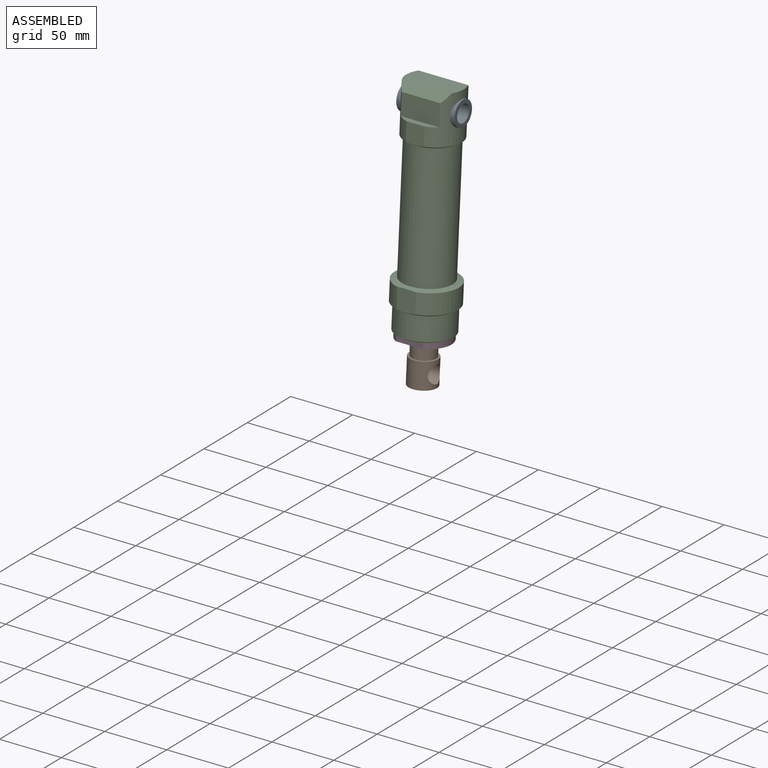
[diagram: assembled view]
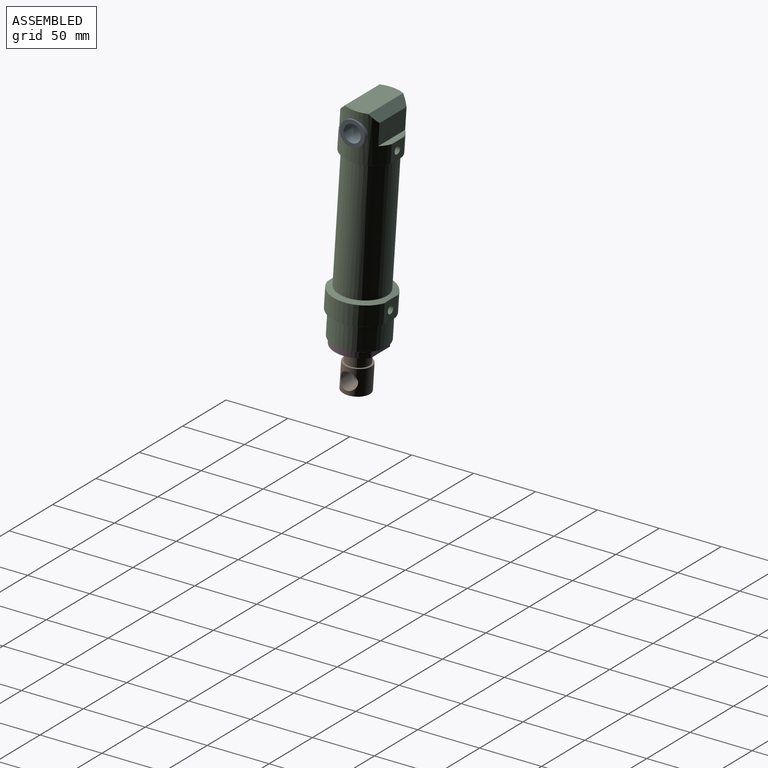
[diagram: assembled view, second angle]
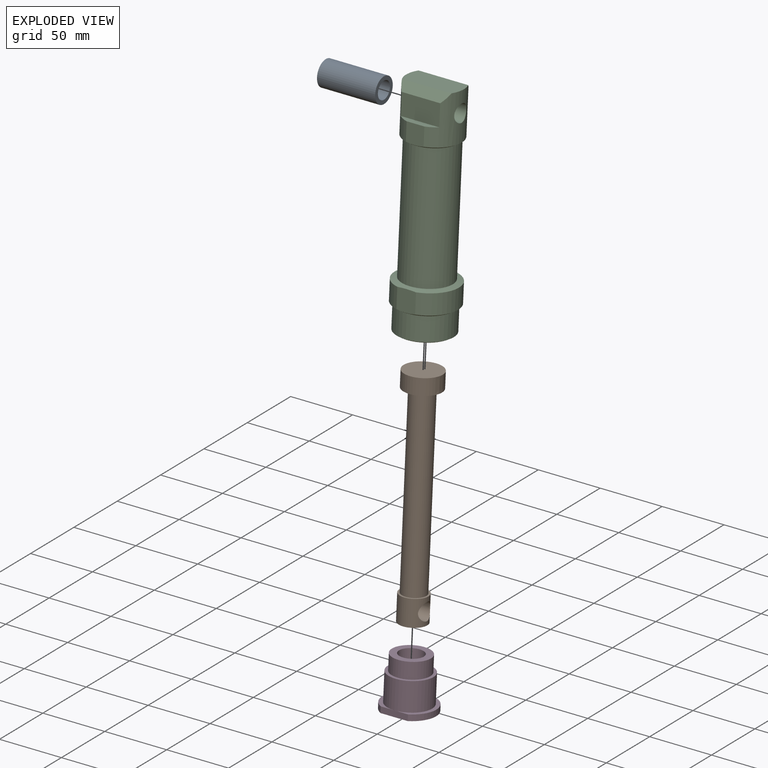
[diagram: exploded view]
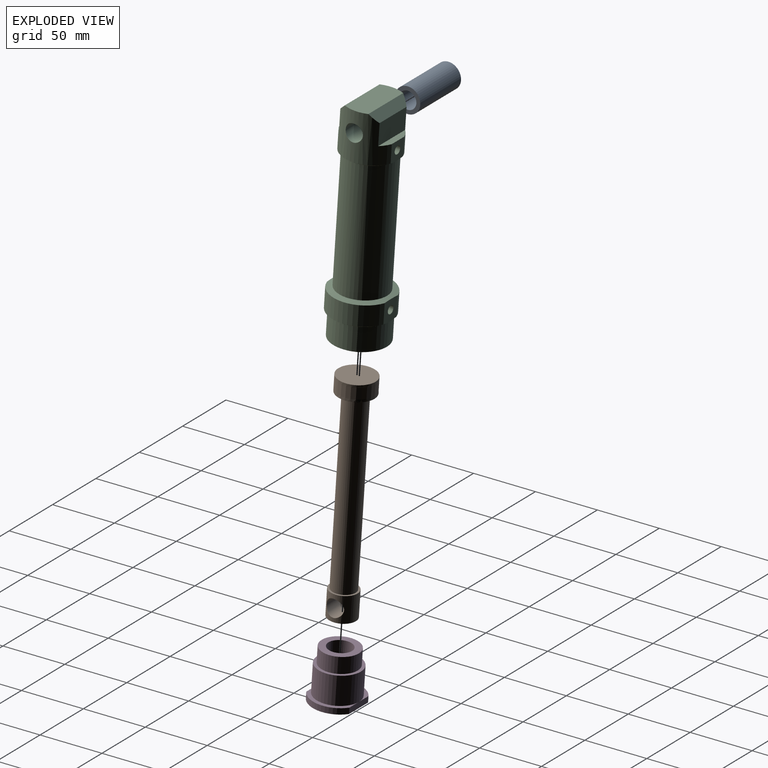
[diagram: exploded view, second angle]
ASSEMBLY  parts=4 mates=2
PART A: 4 faces, bbox 47x20.3x20.3 mm
  f0: plane 20.32x20.32mm, normal (-1,0,0), area 171mm2, adj f2,f3
  f1: plane 20.32x20.32mm, normal (1,0,0), area 171mm2, adj f2,f3
  f2: cylinder r=10.16mm len=46.99mm, axis (1,0,0), area 2999.7mm2, adj f0,f1
  f3: cylinder r=6.99mm len=46.99mm, axis (1,0,0), area 2062.3mm2, adj f0,f1
PART B: 9 faces, bbox 30x38.1x181 mm
  f0: cylinder r=11.11mm len=23.55mm, axis (0,-0.07,-1), area 1116.3mm2, adj f6,f7,f8
  f1: cylinder r=9.53mm len=147.29mm, axis (0,0.07,1), area 8758.4mm2, adj f4,f6
  f2: cylinder r=15mm len=27.93mm, axis (0,0.07,1), area 456.1mm2, adj f3,f4,f5
  f3: extruded ~30x21.28mm, area 741mm2, adj f2,f4,f5
  f4: plane 30.02x29.93mm, normal (0,-0.07,-1), area 421.8mm2, adj f1,f2,f3
  f5: plane 30.02x29.93mm, normal (0,0.07,1), area 706.8mm2, adj f2,f3
  f6: plane 22.23x22.18mm, normal (0,0.07,1), area 102.9mm2, adj f0,f1
  f7: plane 22.23x22.18mm, normal (0,-0.07,-1), area 387.9mm2, adj f0
  f8: cylinder r=6.99mm len=22.23mm, axis (-1,0,0), area 870.4mm2, adj f0
PART C: 31 faces, bbox 49.9x56.7x180.9 mm
  f0: plane 27.93x9.5mm, normal (0,-0.07,-1), area 192.9mm2, adj f21,f30
  f1: plane 31.11x5.15mm, normal (0,0.07,1), area 124.5mm2, adj f2,f3,f11,f26
  f2: cylinder r=22.23mm len=44.51mm, axis (0,0.07,1), area 1427.2mm2, adj f1,f4,f10,f11,f12,f13,f14,f15
  f3: cylinder r=22.23mm len=44.51mm, axis (0,0.07,1), area 1427.2mm2, adj f1,f4,f10,f11,f12,f13,f14,f15
  f4: cone r=22.23mm half-angle=60deg, axis (0,0.07,1), area 340.3mm2, adj f2,f3,f9,f25,f26
  f5: cylinder r=24.61mm len=47.79mm, axis (0,0.07,1), area 983.2mm2, adj f7,f8,f23,f24
  f6: cylinder r=24.61mm len=47.79mm, axis (0,0.07,1), area 983.2mm2, adj f7,f8,f23,f24
  f7: cone r=24.61mm half-angle=60deg, axis (0,0.07,1), area 380.2mm2, adj f5,f6,f18,f23,f24
  f8: cone r=19.84mm half-angle=75deg, axis (0,-0.07,-1), area 663.5mm2, adj f5,f6,f9,f23,f24
  f9: cylinder r=19.84mm len=102.75mm, axis (0,0.07,1), area 12508.6mm2, adj f4,f8
  f10: plane 31.11x5.15mm, normal (0,0.07,1), area 124.5mm2, adj f2,f3,f15,f25
  f11: plane 31.11x17.13mm, normal (0,1,-0.07), area 534mm2, adj f1,f2,f3,f12
  f12: plane 40.56x7.16mm, normal (0,0.75,0.66), area 325.1mm2, adj f2,f3,f11,f13
  f13: plane 44.45x19.01mm, normal (0,0.07,1), area 820.1mm2, adj f2,f3,f12,f14
  f14: plane 40.56x7.16mm, normal (0,-0.66,0.75), area 325.1mm2, adj f2,f3,f13,f15
  f15: plane 31.11x17.13mm, normal (0,-1,0.07), area 534mm2, adj f2,f3,f10,f14
  f16: cylinder r=6.99mm len=44.45mm, axis (1,0,0), area 1901.7mm2, adj f2,f3
  f17: plane 41.28x41.18mm, normal (0,-0.07,-1), area 380mm2, adj f20,f22
  f18: cylinder r=22.23mm len=45.6mm, axis (0,0.07,1), area 2603.3mm2, adj f7,f22
  f19: plane 34.93x34.85mm, normal (0,-0.07,-1), area 251.1mm2, adj f20,f21
  f20: cylinder r=17.46mm len=36.35mm, axis (0,-0.07,-1), area 2471mm2, adj f17,f19
  f21: cylinder r=15mm len=130.3mm, axis (0,-0.07,-1), area 11660.1mm2, adj f0,f19,f27,f28,f29,f30
  f22: cone r=22.23mm half-angle=60deg, axis (0,0.07,1), area 246.8mm2, adj f17,f18
  f23: plane 17.55x15.84mm, normal (0,-1,0.07), area 250.2mm2, adj f5,f6,f7,f8
  f24: plane 16.85x15.15mm, normal (0,1,-0.07), area 218.5mm2, adj f5,f6,f7,f8,f28
  f25: plane 15.86x15.07mm, normal (0,-1,0.07), area 214.7mm2, adj f2,f3,f4,f10
  f26: plane 15.16x14.38mm, normal (0,1,-0.07), area 183mm2, adj f1,f2,f3,f4,f27
  f27: cylinder r=3.17mm len=6.74mm, axis (0,1,-0.07), area 120.4mm2, adj f21,f26
  f28: cylinder r=3.17mm len=8.82mm, axis (0,1,-0.07), area 167.9mm2, adj f21,f24
  f29: plane 30x14.94mm, normal (0,-0.07,-1), area 352.7mm2, adj f21,f30
  f30: plane 30.17x9.31mm, normal (0,0.83,-0.56), area 322.5mm2, adj f0,f21,f29
PART D: 12 faces, bbox 41.3x36.7x42.1 mm
  f0: cylinder r=20.64mm len=35.17mm, axis (0,0.07,1), area 198.3mm2, adj f1,f2,f10,f11
  f1: plane 41.28x34.85mm, normal (0,-0.07,-1), area 958.3mm2, adj f0,f4,f9,f10,f11
  f2: plane 34.85x20.64mm, normal (0,0.07,1), area 142.7mm2, adj f0,f6,f10,f11
  f3: plane 34.85x20.64mm, normal (0,0.07,1), area 142.7mm2, adj f4,f6,f10,f11
  f4: cylinder r=20.64mm len=35.17mm, axis (0,0.07,1), area 198.3mm2, adj f1,f3,f10,f11
  f5: plane 34.93x34.85mm, normal (0,0.07,1), area 251.1mm2, adj f6,f7
  f6: cylinder r=17.46mm len=36.35mm, axis (0,-0.07,-1), area 2471mm2, adj f2,f3,f5
  f7: cylinder r=15mm len=30.78mm, axis (0,-0.07,-1), area 1196.9mm2, adj f5,f8
  f8: plane 30x29.93mm, normal (0,0.07,1), area 421.8mm2, adj f7,f9
  f9: cylinder r=9.53mm len=41.17mm, axis (0,-0.07,-1), area 2392.9mm2, adj f1,f8
  f10: plane 22x4.75mm, normal (0,1,-0.07), area 104.8mm2, adj f0,f1,f2,f3,f4
  f11: plane 22x4.75mm, normal (0,-1,0.07), area 104.8mm2, adj f0,f1,f2,f3,f4
PLACE A t=(-299.02,881.93,107.79)mm
PLACE B t=(-299.03,881.93,107.79)mm
PLACE C t=(-299.03,881.93,107.79)mm
PLACE D t=(-299.03,881.93,107.79)mm
MATE fastened C.f8 <-> D.f9  axis (0,-0.07,-1) through (-299.03,-146.48,-446.72)mm
MATE slider B.f2 <-> C.f8  axis (0,0.07,1) through (-299.03,-137.02,-305.45)mm
